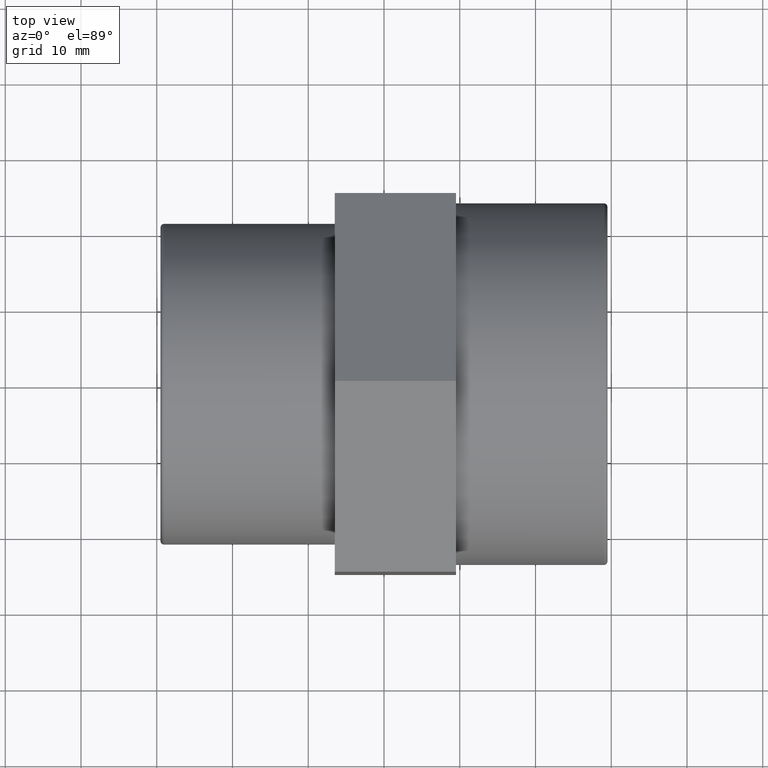
[diagram: clean part render]
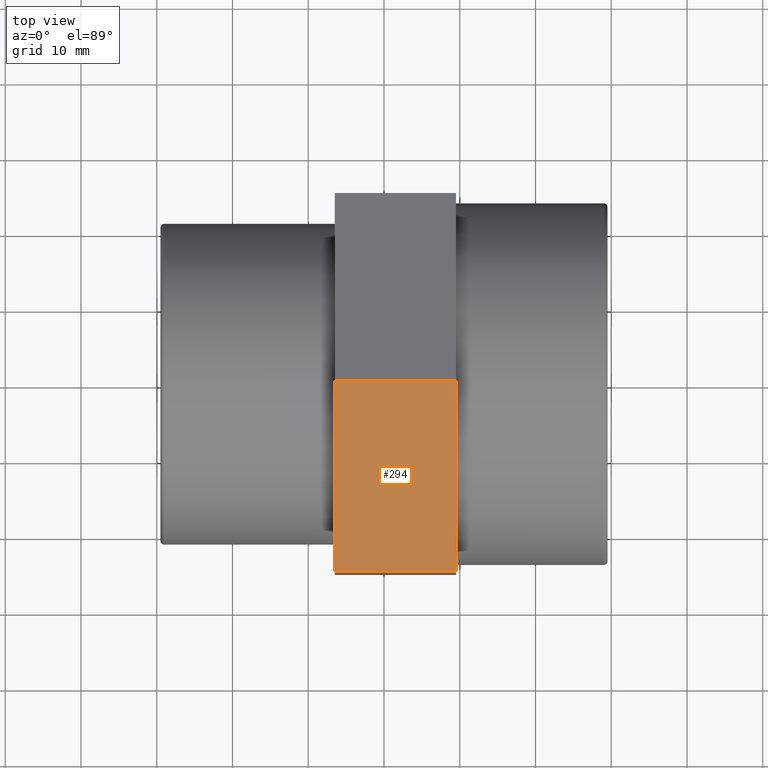
[diagram: same view with one face highlighted and labeled with its STEP entity id]
A machine part, top view. The second image highlights one B-rep face of the part: STEP entity #294.
In plain terms, the highlighted planar face has unit normal (0, -0.5026, 0.8645).
Its self-contained STEP definition (entity closure, byte-faithful):
#18=LINE('',#471,#36);
#26=LINE('',#489,#44);
#29=LINE('',#494,#47);
#30=LINE('',#495,#48);
#36=VECTOR('',#389,16.);
#44=VECTOR('',#403,16.);
#47=VECTOR('',#408,28.8675134594813);
#48=VECTOR('',#409,28.8675134594813);
#62=PLANE('',#329);
#97=FACE_OUTER_BOUND('',#128,.T.);
#128=EDGE_LOOP('',(#248,#249,#250,#251));
#166=VERTEX_POINT('',#464);
#169=VERTEX_POINT('',#469);
#175=VERTEX_POINT('',#486);
#176=VERTEX_POINT('',#488);
#195=EDGE_CURVE('',#169,#166,#18,.T.);
#203=EDGE_CURVE('',#176,#175,#26,.T.);
#206=EDGE_CURVE('',#175,#166,#29,.T.);
#207=EDGE_CURVE('',#169,#176,#30,.T.);
#248=ORIENTED_EDGE('',*,*,#206,.T.);
#249=ORIENTED_EDGE('',*,*,#195,.F.);
#250=ORIENTED_EDGE('',*,*,#207,.T.);
#251=ORIENTED_EDGE('',*,*,#203,.T.);
#294=ADVANCED_FACE('',(#97),#62,.T.);
#329=AXIS2_PLACEMENT_3D('',#493,#406,#407);
#389=DIRECTION('',(-1.,-1.85037170770859E-16,0.));
#403=DIRECTION('',(-1.,-1.85037170770859E-16,0.));
#406=DIRECTION('center_axis',(9.29930274188912E-17,-0.50256403635813,0.864539987137336));
#407=DIRECTION('ref_axis',(-1.77635683940025E-16,0.864539987137336,0.50256403635813));
#408=DIRECTION('',(1.58813419197395E-16,-0.864539987137336,-0.50256403635813));
#409=DIRECTION('',(-1.58813419197395E-16,0.864539987137336,0.50256403635813));
#464=CARTESIAN_POINT('',(-6.49999999999999,-25.0426607664267,14.3596126365236));
#469=CARTESIAN_POINT('',(9.50000000000001,-25.0426607664267,14.3596126365236));
#471=CARTESIAN_POINT('',(9.50000000000001,-25.0426607664267,14.3596126365236));
#486=CARTESIAN_POINT('',(-6.5,-0.0855410514798259,28.8673867203432));
#488=CARTESIAN_POINT('',(9.50000000000001,-0.0855410514798229,28.8673867203432));
#489=CARTESIAN_POINT('',(9.50000000000001,-0.0855410514798229,28.8673867203432));
#493=CARTESIAN_POINT('Origin',(9.50000000000001,-25.0426607664267,14.3596126365236));
#494=CARTESIAN_POINT('',(-6.49999999999999,-18.8033808376899,17.9865561574785));
#495=CARTESIAN_POINT('',(9.50000000000001,-25.0426607664267,14.3596126365236));